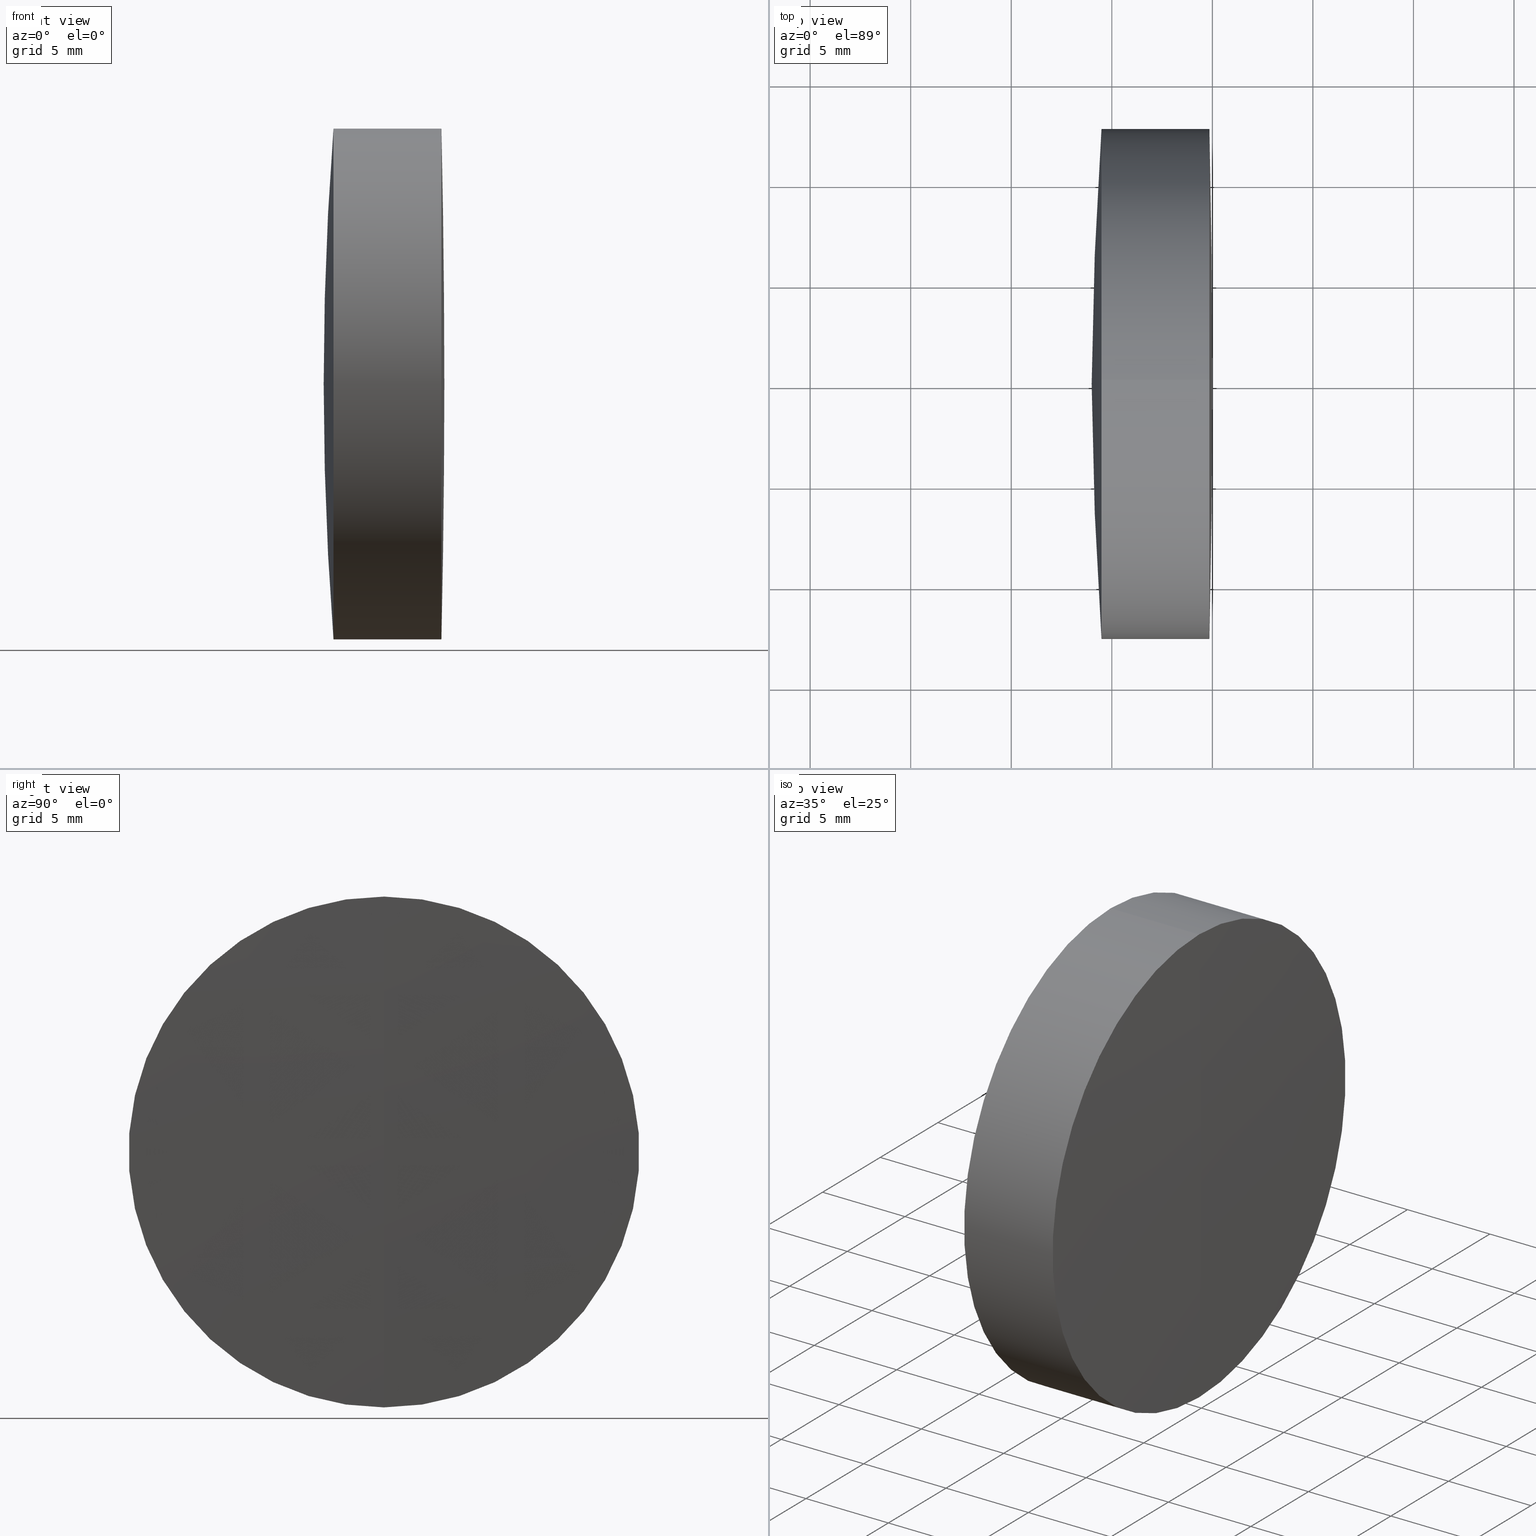
[diagram: canonical four-view strip — front | top / right | iso, engineering-drawing reading convention]
A machine part, canonical four-view strip (front | top / right | iso — engineering-drawing reading convention). The complete STEP part file that produces these views, byte-faithful:
ISO-10303-21;
HEADER;
FILE_DESCRIPTION (( 'STEP AP214' ),
    '1' );
FILE_NAME ('145063.STEP',
    '2019-05-14T05:58:21',
    ( 'user' ),
    ( '΢���й�' ),
    'SwSTEP 2.0',
    'SolidWorks 2016',
    '' );
FILE_SCHEMA (( 'AUTOMOTIVE_DESIGN' ));
ENDSEC;

DATA;
#1 = DIRECTION ( 'NONE',  ( 0.0000000000000000000, 0.0000000000000000000, 1.000000000000000000 ) ) ;
#2 = VERTEX_POINT ( 'NONE', #15 ) ;
#3 = MECHANICAL_DESIGN_GEOMETRIC_PRESENTATION_REPRESENTATION (  '', ( #167 ), #30 ) ;
#4 = PRODUCT_DEFINITION_FORMATION_WITH_SPECIFIED_SOURCE ( '�κ�', '', #64, .NOT_KNOWN. ) ;
#5 = CYLINDRICAL_SURFACE ( 'NONE', #127, 12.69999999999999800 ) ;
#6 = CARTESIAN_POINT ( 'NONE',  ( 317.4099599588133700, 1.555301434917135900E-015, -12.69999999999998000 ) ) ;
#7 = EDGE_LOOP ( 'NONE', ( #217, #116, #214 ) ) ;
#8 = CIRCLE ( 'NONE', #24, 12.70000000000004000 ) ;
#9 = UNCERTAINTY_MEASURE_WITH_UNIT (LENGTH_MEASURE( 1.000000000000000100E-005 ), #240, 'distance_accuracy_value', 'NONE');
#10 = AXIS2_PLACEMENT_3D ( 'NONE', #174, #118, #316 ) ;
#11 = EDGE_CURVE ( 'NONE', #280, #38, #28, .T. ) ;
#12 = DIRECTION ( 'NONE',  ( 0.0000000000000000000, 0.0000000000000000000, -1.000000000000000000 ) ) ;
#13 = CYLINDRICAL_SURFACE ( 'NONE', #305, 12.70000000000000300 ) ;
#14 = ADVANCED_FACE ( 'NONE', ( #313 ), #164, .T. ) ;
#15 = CARTESIAN_POINT ( 'NONE',  ( 314.4883368067589200, 1.555301434917141800E-015, -12.70000000000002800 ) ) ;
#16 = DIRECTION ( 'NONE',  ( -0.0000000000000000000, 1.000000000000000000, 1.224646799147353200E-016 ) ) ;
#17 = CARTESIAN_POINT ( 'NONE',  ( 317.4099599588133700, 0.0000000000000000000, 0.0000000000000000000 ) ) ;
#18 = CARTESIAN_POINT ( 'NONE',  ( 180.8994475431023300, 0.0000000000000000000, -2.331420943353962200E-015 ) ) ;
#19 = FACE_OUTER_BOUND ( 'NONE', #7, .T. ) ;
#20 = CARTESIAN_POINT ( 'NONE',  ( 180.8994475431023300, 0.0000000000000000000, -2.331420943353962200E-015 ) ) ;
#21 = CARTESIAN_POINT ( 'NONE',  ( 314.4883368067588700, 0.0000000000000000000, 0.0000000000000000000 ) ) ;
#22 = DIRECTION ( 'NONE',  ( -1.000000000000000000, -0.0000000000000000000, -0.0000000000000000000 ) ) ;
#23 = DIRECTION ( 'NONE',  ( 0.0000000000000000000, -1.000000000000000000, 0.0000000000000000000 ) ) ;
#24 = AXIS2_PLACEMENT_3D ( 'NONE', #128, #293, #239 ) ;
#25 = DIRECTION ( 'NONE',  ( 0.0000000000000000000, 0.0000000000000000000, 1.000000000000000000 ) ) ;
#26 = EDGE_CURVE ( 'NONE', #80, #2, #166, .T. ) ;
#27 = CARTESIAN_POINT ( 'NONE',  ( 180.8994475431023300, 0.0000000000000000000, -2.331420943353962200E-015 ) ) ;
#28 = LINE ( 'NONE', #183, #220 ) ;
#29 =( LENGTH_UNIT ( ) NAMED_UNIT ( * ) SI_UNIT ( .MILLI., .METRE. ) );
#30 =( GEOMETRIC_REPRESENTATION_CONTEXT ( 3 ) GLOBAL_UNCERTAINTY_ASSIGNED_CONTEXT ( ( #109 ) ) GLOBAL_UNIT_ASSIGNED_CONTEXT ( ( #89, #284, #203 ) ) REPRESENTATION_CONTEXT ( 'NONE', 'WORKASPACE' ) );
#31 =( NAMED_UNIT ( * ) PLANE_ANGLE_UNIT ( ) SI_UNIT ( $, .RADIAN. ) );
#32 = CIRCLE ( 'NONE', #105, 137.0999999999999900 ) ;
#33 = PRESENTATION_LAYER_ASSIGNMENT (  '', '', ( #167 ) ) ;
#34 = ORIENTED_EDGE ( 'NONE', *, *, #148, .T. ) ;
#35 = DIRECTION ( 'NONE',  ( 0.0000000000000000000, 0.0000000000000000000, 1.000000000000000000 ) ) ;
#36 = FILL_AREA_STYLE ('',( #308 ) ) ;
#37 = APPLICATION_CONTEXT ( 'automotive_design' ) ;
#38 = VERTEX_POINT ( 'NONE', #66 ) ;
#39 = CARTESIAN_POINT ( 'NONE',  ( 479.1994475431023400, 0.0000000000000000000, -8.505434843321373200E-016 ) ) ;
#40 = DIRECTION ( 'NONE',  ( 0.0000000000000000000, 1.000000000000000000, 0.0000000000000000000 ) ) ;
#41 = ORIENTED_EDGE ( 'NONE', *, *, #145, .F. ) ;
#42 = CIRCLE ( 'NONE', #236, 137.0999999999999900 ) ;
#43 = DIRECTION ( 'NONE',  ( 0.0000000000000000000, -1.224646799147353200E-016, 1.000000000000000000 ) ) ;
#44 = CARTESIAN_POINT ( 'NONE',  ( 180.8994475431023300, 0.0000000000000000000, -2.331420943353962200E-015 ) ) ;
#45 = CIRCLE ( 'NONE', #309, 12.69999999999999800 ) ;
#46 = DIRECTION ( 'NONE',  ( 0.0000000000000000000, 0.0000000000000000000, 1.000000000000000000 ) ) ;
#47 = ORIENTED_EDGE ( 'NONE', *, *, #143, .T. ) ;
#48 = CARTESIAN_POINT ( 'NONE',  ( -237.4005524568976900, 0.0000000000000000000, 0.0000000000000000000 ) ) ;
#49 = AXIS2_PLACEMENT_3D ( 'NONE', #17, #314, #210 ) ;
#50 =( NAMED_UNIT ( * ) SI_UNIT ( $, .STERADIAN. ) SOLID_ANGLE_UNIT ( ) );
#51 = PRESENTATION_STYLE_ASSIGNMENT (( #340 ) ) ;
#52 = DIRECTION ( 'NONE',  ( -0.0000000000000000000, 1.000000000000000000, 1.224646799147353200E-016 ) ) ;
#53 = VERTEX_POINT ( 'NONE', #94 ) ;
#54 = FACE_OUTER_BOUND ( 'NONE', #315, .T. ) ;
#55 = VERTEX_POINT ( 'NONE', #333 ) ;
#56 = MANIFOLD_SOLID_BREP ( '��ת3', #258 ) ;
#57 =( GEOMETRIC_REPRESENTATION_CONTEXT ( 3 ) GLOBAL_UNCERTAINTY_ASSIGNED_CONTEXT ( ( #132 ) ) GLOBAL_UNIT_ASSIGNED_CONTEXT ( ( #29, #31, #209 ) ) REPRESENTATION_CONTEXT ( 'NONE', 'WORKASPACE' ) );
#58 = ADVANCED_FACE ( 'NONE', ( #125 ), #13, .T. ) ;
#59 = CIRCLE ( 'NONE', #263, 557.3999999999999800 ) ;
#60 = ORIENTED_EDGE ( 'NONE', *, *, #197, .F. ) ;
#61 = AXIS2_PLACEMENT_3D ( 'NONE', #242, #259, #95 ) ;
#62 =( NAMED_UNIT ( * ) PLANE_ANGLE_UNIT ( ) SI_UNIT ( $, .RADIAN. ) );
#63 = AXIS2_PLACEMENT_3D ( 'NONE', #48, #310, #204 ) ;
#64 = PRODUCT ( '145063', '145063', '', ( #188 ) ) ;
#65 = ORIENTED_EDGE ( 'NONE', *, *, #110, .F. ) ;
#66 = CARTESIAN_POINT ( 'NONE',  ( 314.4883368067589200, 0.0000000000000000000, 12.70000000000002800 ) ) ;
#67 = DIRECTION ( 'NONE',  ( 0.0000000000000000000, 1.000000000000000000, 0.0000000000000000000 ) ) ;
#68 = SURFACE_STYLE_FILL_AREA ( #121 ) ;
#69 = DIRECTION ( 'NONE',  ( 0.0000000000000000000, 0.0000000000000000000, 1.000000000000000000 ) ) ;
#70 = VECTOR ( 'NONE', #243, 1000.000000000000000 ) ;
#71 = EDGE_LOOP ( 'NONE', ( #130, #107, #156 ) ) ;
#72 = SPHERICAL_SURFACE ( 'NONE', #99, 137.0999999999999900 ) ;
#73 = FILL_AREA_STYLE_COLOUR ( '', #330 ) ;
#74 = DIRECTION ( 'NONE',  ( 0.0000000000000000000, 0.0000000000000000000, 1.000000000000000000 ) ) ;
#75 = CARTESIAN_POINT ( 'NONE',  ( -0.5519199926577972300, 0.0000000000000000000, 12.70000000000000300 ) ) ;
#76 = DIRECTION ( 'NONE',  ( 0.0000000000000000000, 0.0000000000000000000, 1.000000000000000000 ) ) ;
#77 = DIRECTION ( 'NONE',  ( 0.0000000000000000000, -1.224646799147353200E-016, 1.000000000000000000 ) ) ;
#78 = CARTESIAN_POINT ( 'NONE',  ( 479.1994475431023400, 0.0000000000000000000, -8.505434843321373200E-016 ) ) ;
#79 =( LENGTH_UNIT ( ) NAMED_UNIT ( * ) SI_UNIT ( .MILLI., .METRE. ) );
#80 = VERTEX_POINT ( 'NONE', #331 ) ;
#81 = VECTOR ( 'NONE', #151, 1000.000000000000000 ) ;
#82 = CIRCLE ( 'NONE', #298, 12.69999999999996600 ) ;
#83 = AXIS2_PLACEMENT_3D ( 'NONE', #256, #67, #1 ) ;
#84 = ORIENTED_EDGE ( 'NONE', *, *, #148, .F. ) ;
#85 = ORIENTED_EDGE ( 'NONE', *, *, #252, .T. ) ;
#86 = FILL_AREA_STYLE ('',( #297 ) ) ;
#87 = PRODUCT_DEFINITION_CONTEXT ( 'detailed design', #337, 'design' ) ;
#88 = ORIENTED_EDGE ( 'NONE', *, *, #225, .T. ) ;
#89 =( LENGTH_UNIT ( ) NAMED_UNIT ( * ) SI_UNIT ( .MILLI., .METRE. ) );
#90 = VERTEX_POINT ( 'NONE', #173 ) ;
#91 = FACE_OUTER_BOUND ( 'NONE', #206, .T. ) ;
#92 = DIRECTION ( 'NONE',  ( -1.000000000000000000, -0.0000000000000000000, -0.0000000000000000000 ) ) ;
#93 = CARTESIAN_POINT ( 'NONE',  ( 319.8547481011140700, 0.0000000000000000000, 12.69999999999996600 ) ) ;
#94 = CARTESIAN_POINT ( 'NONE',  ( 317.4099599588133700, 0.0000000000000000000, 12.69999999999997800 ) ) ;
#95 = DIRECTION ( 'NONE',  ( 0.0000000000000000000, 0.0000000000000000000, 1.000000000000000000 ) ) ;
#96 = SPHERICAL_SURFACE ( 'NONE', #161, 137.0999999999999900 ) ;
#97 = FACE_OUTER_BOUND ( 'NONE', #288, .T. ) ;
#98 = CARTESIAN_POINT ( 'NONE',  ( 180.8994475431023300, 0.0000000000000000000, -2.331420943353962200E-015 ) ) ;
#99 = AXIS2_PLACEMENT_3D ( 'NONE', #27, #295, #74 ) ;
#100 = CIRCLE ( 'NONE', #172, 165.2000000000000200 ) ;
#101 = ORIENTED_EDGE ( 'NONE', *, *, #110, .T. ) ;
#102 = AXIS2_PLACEMENT_3D ( 'NONE', #262, #318, #332 ) ;
#103 = EDGE_LOOP ( 'NONE', ( #139, #327, #178, #192 ) ) ;
#104 =( NAMED_UNIT ( * ) PLANE_ANGLE_UNIT ( ) SI_UNIT ( $, .RADIAN. ) );
#105 = AXIS2_PLACEMENT_3D ( 'NONE', #98, #187, #150 ) ;
#106 = DIRECTION ( 'NONE',  ( 0.0000000000000000000, 0.0000000000000000000, 1.000000000000000000 ) ) ;
#107 = ORIENTED_EDGE ( 'NONE', *, *, #283, .T. ) ;
#108 = CARTESIAN_POINT ( 'NONE',  ( 317.9994475431023500, 0.0000000000000000000, 6.063532864801144400E-015 ) ) ;
#109 = UNCERTAINTY_MEASURE_WITH_UNIT (LENGTH_MEASURE( 1.000000000000000100E-005 ), #89, 'distance_accuracy_value', 'NONE');
#110 = EDGE_CURVE ( 'NONE', #123, #234, #59, .T. ) ;
#111 = AXIS2_PLACEMENT_3D ( 'NONE', #248, #185, #180 ) ;
#112 = ORIENTED_EDGE ( 'NONE', *, *, #26, .T. ) ;
#113 = ORIENTED_EDGE ( 'NONE', *, *, #141, .F. ) ;
#114 = EDGE_CURVE ( 'NONE', #280, #80, #117, .T. ) ;
#115 = FACE_OUTER_BOUND ( 'NONE', #272, .T. ) ;
#116 = ORIENTED_EDGE ( 'NONE', *, *, #196, .T. ) ;
#117 = CIRCLE ( 'NONE', #49, 12.69999999999999800 ) ;
#118 = DIRECTION ( 'NONE',  ( -1.000000000000000000, -0.0000000000000000000, -0.0000000000000000000 ) ) ;
#119 = DIRECTION ( 'NONE',  ( -1.000000000000000000, -0.0000000000000000000, -0.0000000000000000000 ) ) ;
#120 = CIRCLE ( 'NONE', #131, 137.0999999999999900 ) ;
#121 = FILL_AREA_STYLE ('',( #73 ) ) ;
#122 = DIRECTION ( 'NONE',  ( 0.0000000000000000000, -1.000000000000000000, 0.0000000000000000000 ) ) ;
#123 = VERTEX_POINT ( 'NONE', #205 ) ;
#124 = CARTESIAN_POINT ( 'NONE',  ( 235.8074506907544200, 0.0000000000000000000, 0.0000000000000000000 ) ) ;
#125 = FACE_OUTER_BOUND ( 'NONE', #126, .T. ) ;
#126 = EDGE_LOOP ( 'NONE', ( #88, #266, #113, #133 ) ) ;
#127 = AXIS2_PLACEMENT_3D ( 'NONE', #191, #321, #324 ) ;
#128 = CARTESIAN_POINT ( 'NONE',  ( 317.4099599588133700, 0.0000000000000000000, 0.0000000000000000000 ) ) ;
#129 =( GEOMETRIC_REPRESENTATION_CONTEXT ( 3 ) GLOBAL_UNCERTAINTY_ASSIGNED_CONTEXT ( ( #9 ) ) GLOBAL_UNIT_ASSIGNED_CONTEXT ( ( #240, #104, #271 ) ) REPRESENTATION_CONTEXT ( 'NONE', 'WORKASPACE' ) );
#130 = ORIENTED_EDGE ( 'NONE', *, *, #252, .F. ) ;
#131 = AXIS2_PLACEMENT_3D ( 'NONE', #20, #122, #12 ) ;
#132 = UNCERTAINTY_MEASURE_WITH_UNIT (LENGTH_MEASURE( 1.000000000000000100E-005 ), #29, 'distance_accuracy_value', 'NONE');
#133 = ORIENTED_EDGE ( 'NONE', *, *, #175, .F. ) ;
#134 = AXIS2_PLACEMENT_3D ( 'NONE', #344, #23, #215 ) ;
#135 = LINE ( 'NONE', #75, #81 ) ;
#136 = AXIS2_PLACEMENT_3D ( 'NONE', #124, #273, #261 ) ;
#137 = UNCERTAINTY_MEASURE_WITH_UNIT (LENGTH_MEASURE( 1.000000000000000100E-005 ), #79, 'distance_accuracy_value', 'NONE');
#138 = CYLINDRICAL_SURFACE ( 'NONE', #136, 12.69999999999999800 ) ;
#139 = ORIENTED_EDGE ( 'NONE', *, *, #347, .F. ) ;
#140 = MANIFOLD_SOLID_BREP ( '��ת1', #339 ) ;
#141 = EDGE_CURVE ( 'NONE', #53, #343, #251, .T. ) ;
#142 = DIRECTION ( 'NONE',  ( 0.0000000000000000000, 1.000000000000000000, 0.0000000000000000000 ) ) ;
#143 = EDGE_CURVE ( 'NONE', #343, #53, #8, .T. ) ;
#144 = ORIENTED_EDGE ( 'NONE', *, *, #196, .F. ) ;
#145 = EDGE_CURVE ( 'NONE', #38, #160, #292, .T. ) ;
#146 = EDGE_LOOP ( 'NONE', ( #224, #230, #47 ) ) ;
#147 = FACE_OUTER_BOUND ( 'NONE', #103, .T. ) ;
#148 = EDGE_CURVE ( 'NONE', #123, #55, #181, .T. ) ;
#149 = DIRECTION ( 'NONE',  ( 0.0000000000000000000, 0.0000000000000000000, -1.000000000000000000 ) ) ;
#150 = DIRECTION ( 'NONE',  ( 0.0000000000000000000, -1.224646799147353200E-016, 1.000000000000000000 ) ) ;
#151 = DIRECTION ( 'NONE',  ( -1.000000000000000000, -0.0000000000000000000, -0.0000000000000000000 ) ) ;
#152 = ORIENTED_EDGE ( 'NONE', *, *, #336, .T. ) ;
#153 = CARTESIAN_POINT ( 'NONE',  ( 314.4883368067588700, 0.0000000000000000000, 0.0000000000000000000 ) ) ;
#154 = DIRECTION ( 'NONE',  ( 0.0000000000000000000, 0.0000000000000000000, 1.000000000000000000 ) ) ;
#155 =( GEOMETRIC_REPRESENTATION_CONTEXT ( 3 ) GLOBAL_UNCERTAINTY_ASSIGNED_CONTEXT ( ( #137 ) ) GLOBAL_UNIT_ASSIGNED_CONTEXT ( ( #79, #62, #50 ) ) REPRESENTATION_CONTEXT ( 'NONE', 'WORKASPACE' ) );
#156 = ORIENTED_EDGE ( 'NONE', *, *, #145, .T. ) ;
#157 = SURFACE_STYLE_FILL_AREA ( #36 ) ;
#158 = SPHERICAL_SURFACE ( 'NONE', #83, 557.3999999999999800 ) ;
#159 = MECHANICAL_DESIGN_GEOMETRIC_PRESENTATION_REPRESENTATION (  '', ( #328 ), #129 ) ;
#160 = VERTEX_POINT ( 'NONE', #270 ) ;
#161 = AXIS2_PLACEMENT_3D ( 'NONE', #186, #334, #106 ) ;
#162 = PRESENTATION_STYLE_ASSIGNMENT (( #300 ) ) ;
#163 = ORIENTED_EDGE ( 'NONE', *, *, #221, .F. ) ;
#164 = SPHERICAL_SURFACE ( 'NONE', #296, 137.0999999999999900 ) ;
#165 = FACE_OUTER_BOUND ( 'NONE', #146, .T. ) ;
#166 = LINE ( 'NONE', #285, #317 ) ;
#167 = STYLED_ITEM ( 'NONE', ( #182 ), #56 ) ;
#168 = SPHERICAL_SURFACE ( 'NONE', #338, 137.0999999999999900 ) ;
#169 = ORIENTED_EDGE ( 'NONE', *, *, #114, .T. ) ;
#170 = EDGE_CURVE ( 'NONE', #55, #234, #260, .T. ) ;
#171 = SURFACE_STYLE_FILL_AREA ( #86 ) ;
#172 = AXIS2_PLACEMENT_3D ( 'NONE', #78, #52, #43 ) ;
#173 = CARTESIAN_POINT ( 'NONE',  ( 317.9994475431023500, 0.0000000000000000000, 6.063532864801144400E-015 ) ) ;
#174 = CARTESIAN_POINT ( 'NONE',  ( -0.5519199926577972300, 0.0000000000000000000, 0.0000000000000000000 ) ) ;
#175 = EDGE_CURVE ( 'NONE', #234, #53, #135, .T. ) ;
#176 = SURFACE_SIDE_STYLE ('',( #171 ) ) ;
#177 = DIRECTION ( 'NONE',  ( 0.0000000000000000000, 1.000000000000000000, 0.0000000000000000000 ) ) ;
#178 = ORIENTED_EDGE ( 'NONE', *, *, #175, .T. ) ;
#179 = ADVANCED_FACE ( 'NONE', ( #165 ), #72, .F. ) ;
#180 = DIRECTION ( 'NONE',  ( 1.000000000000000000, 0.0000000000000000000, 0.0000000000000000000 ) ) ;
#181 = CIRCLE ( 'NONE', #222, 557.3999999999999800 ) ;
#182 = PRESENTATION_STYLE_ASSIGNMENT (( #255 ) ) ;
#183 = CARTESIAN_POINT ( 'NONE',  ( 235.8074506907544200, 0.0000000000000000000, 12.69999999999999800 ) ) ;
#184 = DIRECTION ( 'NONE',  ( 0.0000000000000000000, -1.000000000000000000, 0.0000000000000000000 ) ) ;
#185 = DIRECTION ( 'NONE',  ( 0.0000000000000000000, 0.0000000000000000000, 1.000000000000000000 ) ) ;
#186 = CARTESIAN_POINT ( 'NONE',  ( 180.8994475431023300, 0.0000000000000000000, -2.331420943353962200E-015 ) ) ;
#187 = DIRECTION ( 'NONE',  ( -0.0000000000000000000, 1.000000000000000000, 1.224646799147353200E-016 ) ) ;
#188 = PRODUCT_CONTEXT ( 'NONE', #37, 'mechanical' ) ;
#189 = ORIENTED_EDGE ( 'NONE', *, *, #223, .T. ) ;
#190 = CARTESIAN_POINT ( 'NONE',  ( 317.4099599588133700, 0.0000000000000000000, 0.0000000000000000000 ) ) ;
#191 = CARTESIAN_POINT ( 'NONE',  ( 235.8074506907544200, 0.0000000000000000000, 0.0000000000000000000 ) ) ;
#192 = ORIENTED_EDGE ( 'NONE', *, *, #143, .F. ) ;
#193 = CYLINDRICAL_SURFACE ( 'NONE', #10, 12.70000000000000300 ) ;
#194 = ORIENTED_EDGE ( 'NONE', *, *, #225, .F. ) ;
#195 = ORIENTED_EDGE ( 'NONE', *, *, #11, .T. ) ;
#196 = EDGE_CURVE ( 'NONE', #90, #80, #32, .T. ) ;
#197 = EDGE_CURVE ( 'NONE', #38, #2, #45, .T. ) ;
#198 = VERTEX_POINT ( 'NONE', #108 ) ;
#199 = PRODUCT_RELATED_PRODUCT_CATEGORY ( 'part', '', ( #64 ) ) ;
#200 = ORIENTED_EDGE ( 'NONE', *, *, #26, .F. ) ;
#201 = ORIENTED_EDGE ( 'NONE', *, *, #11, .F. ) ;
#202 = PRESENTATION_LAYER_ASSIGNMENT (  '', '', ( #328 ) ) ;
#203 =( NAMED_UNIT ( * ) SI_UNIT ( $, .STERADIAN. ) SOLID_ANGLE_UNIT ( ) );
#204 = DIRECTION ( 'NONE',  ( 0.0000000000000000000, 0.0000000000000000000, 1.000000000000000000 ) ) ;
#205 = CARTESIAN_POINT ( 'NONE',  ( 319.9994475431023500, 0.0000000000000000000, 3.413090629223673800E-014 ) ) ;
#206 = EDGE_LOOP ( 'NONE', ( #200, #189, #195, #325 ) ) ;
#207 = CARTESIAN_POINT ( 'NONE',  ( 180.8994475431023300, 0.0000000000000000000, -2.331420943353962200E-015 ) ) ;
#208 = PRODUCT_DEFINITION_SHAPE ( 'NONE', 'NONE',  #233 ) ;
#209 =( NAMED_UNIT ( * ) SI_UNIT ( $, .STERADIAN. ) SOLID_ANGLE_UNIT ( ) );
#210 = DIRECTION ( 'NONE',  ( 0.0000000000000000000, 0.0000000000000000000, 1.000000000000000000 ) ) ;
#211 = CARTESIAN_POINT ( 'NONE',  ( 317.4099599588133700, 0.0000000000000000000, 12.69999999999999800 ) ) ;
#212 = FACE_OUTER_BOUND ( 'NONE', #237, .T. ) ;
#213 = AXIS2_PLACEMENT_3D ( 'NONE', #44, #247, #149 ) ;
#214 = ORIENTED_EDGE ( 'NONE', *, *, #114, .F. ) ;
#215 = DIRECTION ( 'NONE',  ( 0.0000000000000000000, 0.0000000000000000000, -1.000000000000000000 ) ) ;
#216 = CIRCLE ( 'NONE', #102, 12.69999999999999800 ) ;
#217 = ORIENTED_EDGE ( 'NONE', *, *, #336, .F. ) ;
#218 = DIRECTION ( 'NONE',  ( -1.000000000000000000, -0.0000000000000000000, -0.0000000000000000000 ) ) ;
#219 = COLOUR_RGB ( '',1.000000000000000000, 1.000000000000000000, 1.000000000000000000 ) ;
#220 = VECTOR ( 'NONE', #119, 1000.000000000000000 ) ;
#221 = EDGE_CURVE ( 'NONE', #198, #343, #42, .T. ) ;
#222 = AXIS2_PLACEMENT_3D ( 'NONE', #319, #291, #238 ) ;
#223 = EDGE_CURVE ( 'NONE', #80, #280, #216, .T. ) ;
#224 = ORIENTED_EDGE ( 'NONE', *, *, #276, .F. ) ;
#225 = EDGE_CURVE ( 'NONE', #234, #55, #82, .T. ) ;
#226 = FACE_OUTER_BOUND ( 'NONE', #275, .T. ) ;
#227 = LINE ( 'NONE', #335, #70 ) ;
#228 = CARTESIAN_POINT ( 'NONE',  ( -0.5519199926577972300, 0.0000000000000000000, 0.0000000000000000000 ) ) ;
#229 = ADVANCED_FACE ( 'NONE', ( #226 ), #96, .F. ) ;
#230 = ORIENTED_EDGE ( 'NONE', *, *, #221, .T. ) ;
#231 = SURFACE_SIDE_STYLE ('',( #157 ) ) ;
#232 = DIRECTION ( 'NONE',  ( -1.000000000000000000, -0.0000000000000000000, -0.0000000000000000000 ) ) ;
#233 = PRODUCT_DEFINITION ( 'δ֪', '', #4, #87 ) ;
#234 = VERTEX_POINT ( 'NONE', #93 ) ;
#235 = COLOUR_RGB ( '',1.000000000000000000, 1.000000000000000000, 1.000000000000000000 ) ;
#236 = AXIS2_PLACEMENT_3D ( 'NONE', #207, #16, #77 ) ;
#237 = EDGE_LOOP ( 'NONE', ( #84, #101, #264 ) ) ;
#238 = DIRECTION ( 'NONE',  ( 0.0000000000000000000, -1.224646799147353500E-016, 1.000000000000000000 ) ) ;
#239 = DIRECTION ( 'NONE',  ( 0.0000000000000000000, 0.0000000000000000000, 1.000000000000000000 ) ) ;
#240 =( LENGTH_UNIT ( ) NAMED_UNIT ( * ) SI_UNIT ( .MILLI., .METRE. ) );
#241 = ORIENTED_EDGE ( 'NONE', *, *, #276, .T. ) ;
#242 = CARTESIAN_POINT ( 'NONE',  ( 479.1994475431023400, 0.0000000000000000000, -8.505434843321373200E-016 ) ) ;
#243 = DIRECTION ( 'NONE',  ( -1.000000000000000000, -0.0000000000000000000, -0.0000000000000000000 ) ) ;
#244 = CIRCLE ( 'NONE', #290, 12.69999999999999800 ) ;
#245 = ORIENTED_EDGE ( 'NONE', *, *, #197, .T. ) ;
#246 = ORIENTED_EDGE ( 'NONE', *, *, #141, .T. ) ;
#247 = DIRECTION ( 'NONE',  ( 0.0000000000000000000, -1.000000000000000000, 0.0000000000000000000 ) ) ;
#248 = CARTESIAN_POINT ( 'NONE',  ( 0.0000000000000000000, 0.0000000000000000000, 0.0000000000000000000 ) ) ;
#249 = ADVANCED_FACE ( 'NONE', ( #115 ), #138, .T. ) ;
#250 = ADVANCED_FACE ( 'NONE', ( #322 ), #341, .T. ) ;
#251 = CIRCLE ( 'NONE', #323, 12.70000000000004000 ) ;
#252 = EDGE_CURVE ( 'NONE', #2, #160, #100, .T. ) ;
#253 = ADVANCED_FACE ( 'NONE', ( #54 ), #301, .T. ) ;
#254 = DIRECTION ( 'NONE',  ( 0.0000000000000000000, 0.0000000000000000000, 1.000000000000000000 ) ) ;
#255 = SURFACE_STYLE_USAGE ( .BOTH. , #231 ) ;
#256 = CARTESIAN_POINT ( 'NONE',  ( -237.4005524568976900, 0.0000000000000000000, 0.0000000000000000000 ) ) ;
#257 = ADVANCED_FACE ( 'NONE', ( #91 ), #5, .T. ) ;
#258 = CLOSED_SHELL ( 'NONE', ( #282, #58, #179, #229, #279, #277 ) ) ;
#259 = DIRECTION ( 'NONE',  ( 0.0000000000000000000, 1.000000000000000000, 0.0000000000000000000 ) ) ;
#260 = CIRCLE ( 'NONE', #329, 12.69999999999996600 ) ;
#261 = DIRECTION ( 'NONE',  ( 0.0000000000000000000, 0.0000000000000000000, 1.000000000000000000 ) ) ;
#262 = CARTESIAN_POINT ( 'NONE',  ( 317.4099599588133700, 0.0000000000000000000, 0.0000000000000000000 ) ) ;
#263 = AXIS2_PLACEMENT_3D ( 'NONE', #286, #184, #312 ) ;
#264 = ORIENTED_EDGE ( 'NONE', *, *, #170, .F. ) ;
#265 = STYLED_ITEM ( 'NONE', ( #162 ), #268 ) ;
#266 = ORIENTED_EDGE ( 'NONE', *, *, #347, .T. ) ;
#267 = DIRECTION ( 'NONE',  ( -1.000000000000000000, -0.0000000000000000000, -0.0000000000000000000 ) ) ;
#268 = ADVANCED_BREP_SHAPE_REPRESENTATION ( '145063', ( #140, #56, #111 ), #57 ) ;
#269 = CARTESIAN_POINT ( 'NONE',  ( 319.8547481011140700, 0.0000000000000000000, 0.0000000000000000000 ) ) ;
#270 = CARTESIAN_POINT ( 'NONE',  ( 313.9994475431023500, 0.0000000000000000000, 9.265039076625000400E-015 ) ) ;
#271 =( NAMED_UNIT ( * ) SI_UNIT ( $, .STERADIAN. ) SOLID_ANGLE_UNIT ( ) );
#272 = EDGE_LOOP ( 'NONE', ( #169, #112, #60, #201 ) ) ;
#273 = DIRECTION ( 'NONE',  ( -1.000000000000000000, -0.0000000000000000000, -0.0000000000000000000 ) ) ;
#274 = DIRECTION ( 'NONE',  ( 0.0000000000000000000, 0.0000000000000000000, 1.000000000000000000 ) ) ;
#275 = EDGE_LOOP ( 'NONE', ( #163, #241, #246 ) ) ;
#276 = EDGE_CURVE ( 'NONE', #198, #53, #120, .T. ) ;
#277 = ADVANCED_FACE ( 'NONE', ( #212 ), #306, .T. ) ;
#278 = EDGE_LOOP ( 'NONE', ( #144, #152, #281 ) ) ;
#279 = ADVANCED_FACE ( 'NONE', ( #147 ), #193, .T. ) ;
#280 = VERTEX_POINT ( 'NONE', #211 ) ;
#281 = ORIENTED_EDGE ( 'NONE', *, *, #223, .F. ) ;
#282 = ADVANCED_FACE ( 'NONE', ( #97 ), #158, .T. ) ;
#283 = EDGE_CURVE ( 'NONE', #2, #38, #244, .T. ) ;
#284 =( NAMED_UNIT ( * ) PLANE_ANGLE_UNIT ( ) SI_UNIT ( $, .RADIAN. ) );
#285 = CARTESIAN_POINT ( 'NONE',  ( 235.8074506907544200, 1.555301434917138200E-015, -12.69999999999999800 ) ) ;
#286 = CARTESIAN_POINT ( 'NONE',  ( -237.4005524568976900, 0.0000000000000000000, 0.0000000000000000000 ) ) ;
#287 = CARTESIAN_POINT ( 'NONE',  ( 319.8547481011140700, 0.0000000000000000000, 0.0000000000000000000 ) ) ;
#288 = EDGE_LOOP ( 'NONE', ( #65, #34, #194 ) ) ;
#289 = CARTESIAN_POINT ( 'NONE',  ( 180.8994475431023300, 0.0000000000000000000, -2.331420943353962200E-015 ) ) ;
#290 = AXIS2_PLACEMENT_3D ( 'NONE', #153, #22, #274 ) ;
#291 = DIRECTION ( 'NONE',  ( -0.0000000000000000000, 1.000000000000000000, 1.224646799147353200E-016 ) ) ;
#292 = CIRCLE ( 'NONE', #134, 165.2000000000000200 ) ;
#293 = DIRECTION ( 'NONE',  ( -1.000000000000000000, -0.0000000000000000000, -0.0000000000000000000 ) ) ;
#294 = AXIS2_PLACEMENT_3D ( 'NONE', #39, #142, #154 ) ;
#295 = DIRECTION ( 'NONE',  ( 0.0000000000000000000, 1.000000000000000000, 0.0000000000000000000 ) ) ;
#296 = AXIS2_PLACEMENT_3D ( 'NONE', #289, #177, #69 ) ;
#297 = FILL_AREA_STYLE_COLOUR ( '', #235 ) ;
#298 = AXIS2_PLACEMENT_3D ( 'NONE', #287, #232, #346 ) ;
#299 = CIRCLE ( 'NONE', #213, 137.0999999999999900 ) ;
#300 = SURFACE_STYLE_USAGE ( .BOTH. , #176 ) ;
#301 = SPHERICAL_SURFACE ( 'NONE', #61, 165.2000000000000200 ) ;
#302 = APPLICATION_PROTOCOL_DEFINITION ( 'draft international standard', 'automotive_design', 1998, #337 ) ;
#303 = ADVANCED_FACE ( 'NONE', ( #19 ), #168, .T. ) ;
#304 = SHAPE_DEFINITION_REPRESENTATION ( #208, #268 ) ;
#305 = AXIS2_PLACEMENT_3D ( 'NONE', #228, #307, #35 ) ;
#306 = SPHERICAL_SURFACE ( 'NONE', #63, 557.3999999999999800 ) ;
#307 = DIRECTION ( 'NONE',  ( -1.000000000000000000, -0.0000000000000000000, -0.0000000000000000000 ) ) ;
#308 = FILL_AREA_STYLE_COLOUR ( '', #219 ) ;
#309 = AXIS2_PLACEMENT_3D ( 'NONE', #21, #267, #25 ) ;
#310 = DIRECTION ( 'NONE',  ( 0.0000000000000000000, 1.000000000000000000, 0.0000000000000000000 ) ) ;
#311 = APPLICATION_PROTOCOL_DEFINITION ( 'draft international standard', 'automotive_design', 1998, #37 ) ;
#312 = DIRECTION ( 'NONE',  ( 0.0000000000000000000, 0.0000000000000000000, -1.000000000000000000 ) ) ;
#313 = FACE_OUTER_BOUND ( 'NONE', #278, .T. ) ;
#314 = DIRECTION ( 'NONE',  ( -1.000000000000000000, -0.0000000000000000000, -0.0000000000000000000 ) ) ;
#315 = EDGE_LOOP ( 'NONE', ( #245, #85, #41 ) ) ;
#316 = DIRECTION ( 'NONE',  ( 0.0000000000000000000, 0.0000000000000000000, 1.000000000000000000 ) ) ;
#317 = VECTOR ( 'NONE', #92, 1000.000000000000000 ) ;
#318 = DIRECTION ( 'NONE',  ( -1.000000000000000000, -0.0000000000000000000, -0.0000000000000000000 ) ) ;
#319 = CARTESIAN_POINT ( 'NONE',  ( -237.4005524568976900, 0.0000000000000000000, 0.0000000000000000000 ) ) ;
#320 = DIRECTION ( 'NONE',  ( -1.000000000000000000, -0.0000000000000000000, -0.0000000000000000000 ) ) ;
#321 = DIRECTION ( 'NONE',  ( -1.000000000000000000, -0.0000000000000000000, -0.0000000000000000000 ) ) ;
#322 = FACE_OUTER_BOUND ( 'NONE', #71, .T. ) ;
#323 = AXIS2_PLACEMENT_3D ( 'NONE', #190, #320, #76 ) ;
#324 = DIRECTION ( 'NONE',  ( 0.0000000000000000000, 0.0000000000000000000, 1.000000000000000000 ) ) ;
#325 = ORIENTED_EDGE ( 'NONE', *, *, #283, .F. ) ;
#326 = MECHANICAL_DESIGN_GEOMETRIC_PRESENTATION_REPRESENTATION (  '', ( #265 ), #155 ) ;
#327 = ORIENTED_EDGE ( 'NONE', *, *, #170, .T. ) ;
#328 = STYLED_ITEM ( 'NONE', ( #51 ), #140 ) ;
#329 = AXIS2_PLACEMENT_3D ( 'NONE', #269, #218, #46 ) ;
#330 = COLOUR_RGB ( '',1.000000000000000000, 1.000000000000000000, 1.000000000000000000 ) ;
#331 = CARTESIAN_POINT ( 'NONE',  ( 317.4099599588133700, 1.555301434917138200E-015, -12.69999999999999800 ) ) ;
#332 = DIRECTION ( 'NONE',  ( 0.0000000000000000000, 0.0000000000000000000, 1.000000000000000000 ) ) ;
#333 = CARTESIAN_POINT ( 'NONE',  ( 319.8547481011140700, 1.555301434917136500E-015, -12.69999999999996600 ) ) ;
#334 = DIRECTION ( 'NONE',  ( 0.0000000000000000000, 1.000000000000000000, 0.0000000000000000000 ) ) ;
#335 = CARTESIAN_POINT ( 'NONE',  ( -0.5519199926577972300, 1.555301434917138800E-015, -12.70000000000000300 ) ) ;
#336 = EDGE_CURVE ( 'NONE', #90, #280, #299, .T. ) ;
#337 = APPLICATION_CONTEXT ( 'automotive_design' ) ;
#338 = AXIS2_PLACEMENT_3D ( 'NONE', #18, #40, #254 ) ;
#339 = CLOSED_SHELL ( 'NONE', ( #303, #249, #253, #250, #257, #14 ) ) ;
#340 = SURFACE_STYLE_USAGE ( .BOTH. , #342 ) ;
#341 = SPHERICAL_SURFACE ( 'NONE', #294, 165.2000000000000200 ) ;
#342 = SURFACE_SIDE_STYLE ('',( #68 ) ) ;
#343 = VERTEX_POINT ( 'NONE', #6 ) ;
#344 = CARTESIAN_POINT ( 'NONE',  ( 479.1994475431023400, 0.0000000000000000000, -8.505434843321373200E-016 ) ) ;
#345 = PRESENTATION_LAYER_ASSIGNMENT (  '', '', ( #265 ) ) ;
#346 = DIRECTION ( 'NONE',  ( 0.0000000000000000000, 0.0000000000000000000, 1.000000000000000000 ) ) ;
#347 = EDGE_CURVE ( 'NONE', #55, #343, #227, .T. ) ;
ENDSEC;
END-ISO-10303-21;
